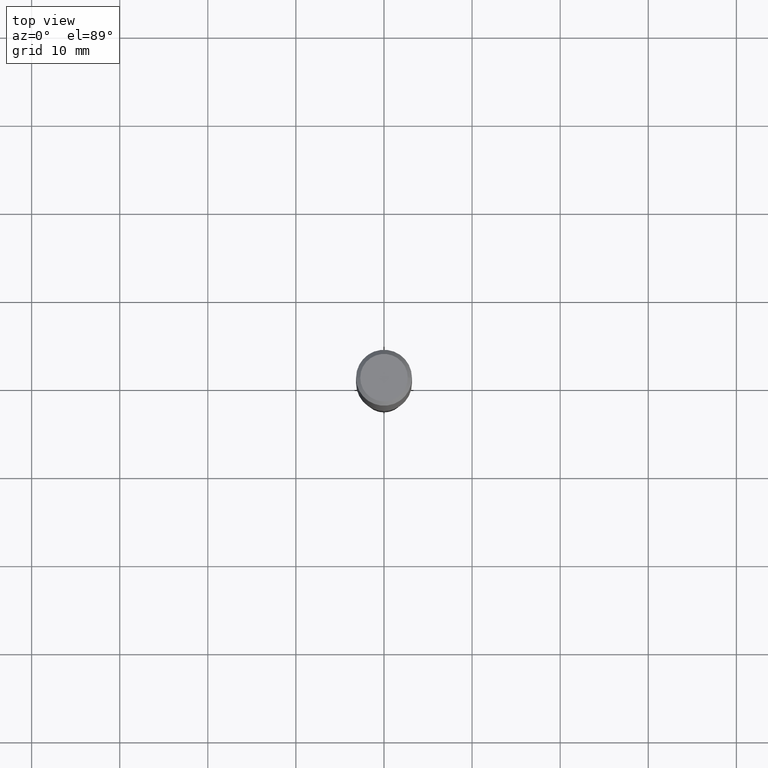
[diagram: clean part render]
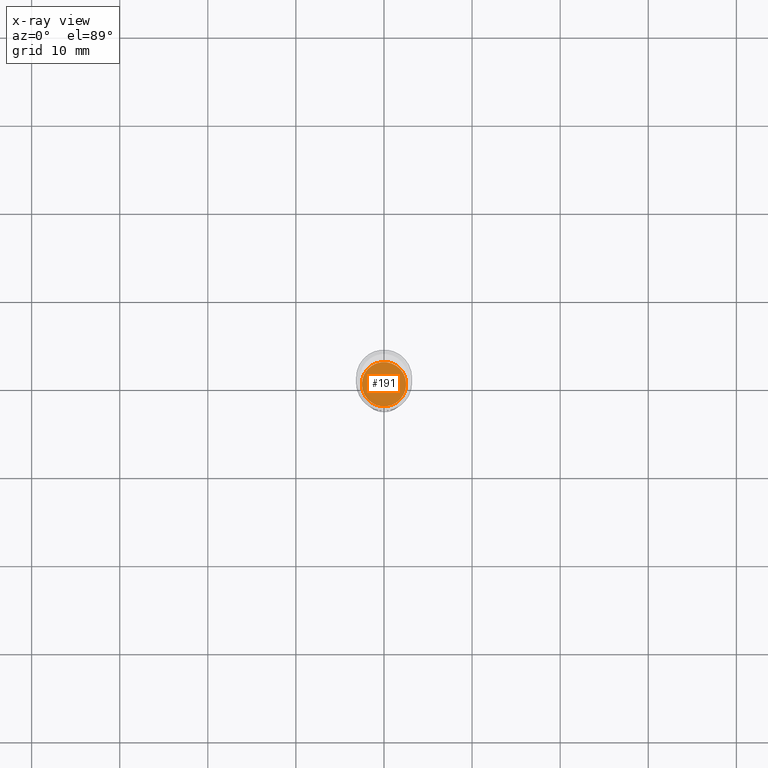
[diagram: x-ray — body ghosted, one internal face saturated and labeled with its STEP entity id]
A machine part, top view, then the same camera in x-ray: the body is ghosted and one INTERNAL B-rep face — a face not visible from any outside direction — is saturated and labeled: STEP entity #191.
In plain terms, the highlighted planar face has unit normal (-0, 0, 1).
Its self-contained STEP definition (entity closure, byte-faithful):
#16 = FACE_OUTER_BOUND ( 'NONE', #359, .T. ) ;
#24 = DIRECTION ( 'NONE',  ( -2.445468806185136597E-29, 3.491481338843145583E-15, 1.000000000000000000 ) ) ;
#29 = DIRECTION ( 'NONE',  ( -2.438088387897960049E-29, 3.491481338843145188E-15, 1.000000000000000000 ) ) ;
#44 = CARTESIAN_POINT ( 'NONE',  ( 0.09900000000000000466, -6.623340099785444075E-15, -1.699000000000000066 ) ) ;
#53 = AXIS2_PLACEMENT_3D ( 'NONE', #285, #24, #249 ) ;
#54 = VERTEX_POINT ( 'NONE', #44 ) ;
#108 = DIRECTION ( 'NONE',  ( 1.000000000000000000, -6.982962677686265922E-15, 4.876176775795935793E-29 ) ) ;
#127 = EDGE_CURVE ( 'NONE', #238, #54, #165, .T. ) ;
#165 = CIRCLE ( 'NONE', #53, 0.09900000000000000466 ) ;
#179 = CARTESIAN_POINT ( 'NONE',  ( -0.09900000000000000466, -5.225940259117894775E-15, -1.699000000000000066 ) ) ;
#191 = ADVANCED_FACE ( 'NONE', ( #16 ), #288, .F. ) ;
#238 = VERTEX_POINT ( 'NONE', #179 ) ;
#249 = DIRECTION ( 'NONE',  ( 1.000000000000000000, -6.982962677686264344E-15, 0.000000000000000000 ) ) ;
#257 = ORIENTED_EDGE ( 'NONE', *, *, #127, .F. ) ;
#279 = CIRCLE ( 'NONE', #350, 0.09900000000000000466 ) ;
#285 = CARTESIAN_POINT ( 'NONE',  ( 4.154851501708547396E-29, -5.932026794694504207E-15, -1.699000000000000066 ) ) ;
#288 = PLANE ( 'NONE',  #341 ) ;
#341 = AXIS2_PLACEMENT_3D ( 'NONE', #435, #29, #108 ) ;
#350 = AXIS2_PLACEMENT_3D ( 'NONE', #374, #492, #416 ) ;
#359 = EDGE_LOOP ( 'NONE', ( #445, #257 ) ) ;
#374 = CARTESIAN_POINT ( 'NONE',  ( 4.154851501708547396E-29, -5.932026794694504207E-15, -1.699000000000000066 ) ) ;
#413 = EDGE_CURVE ( 'NONE', #54, #238, #279, .T. ) ;
#416 = DIRECTION ( 'NONE',  ( 1.000000000000000000, -6.982962677686264344E-15, 0.000000000000000000 ) ) ;
#435 = CARTESIAN_POINT ( 'NONE',  ( 4.154851501708547396E-29, -5.932026794694504207E-15, -1.699000000000000066 ) ) ;
#445 = ORIENTED_EDGE ( 'NONE', *, *, #413, .F. ) ;
#492 = DIRECTION ( 'NONE',  ( -2.445468806185136597E-29, 3.491481338843145583E-15, 1.000000000000000000 ) ) ;